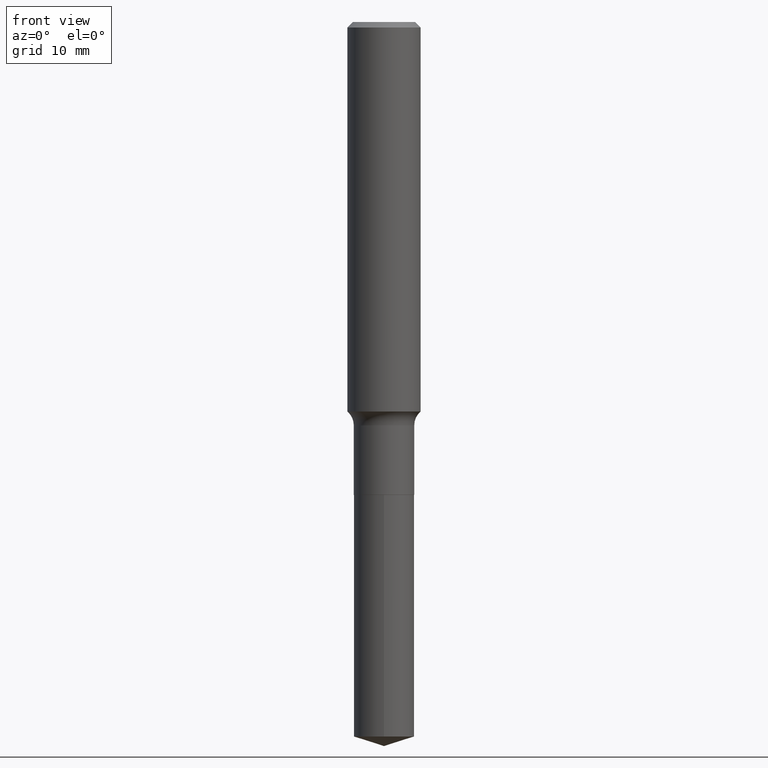
[diagram: clean part render]
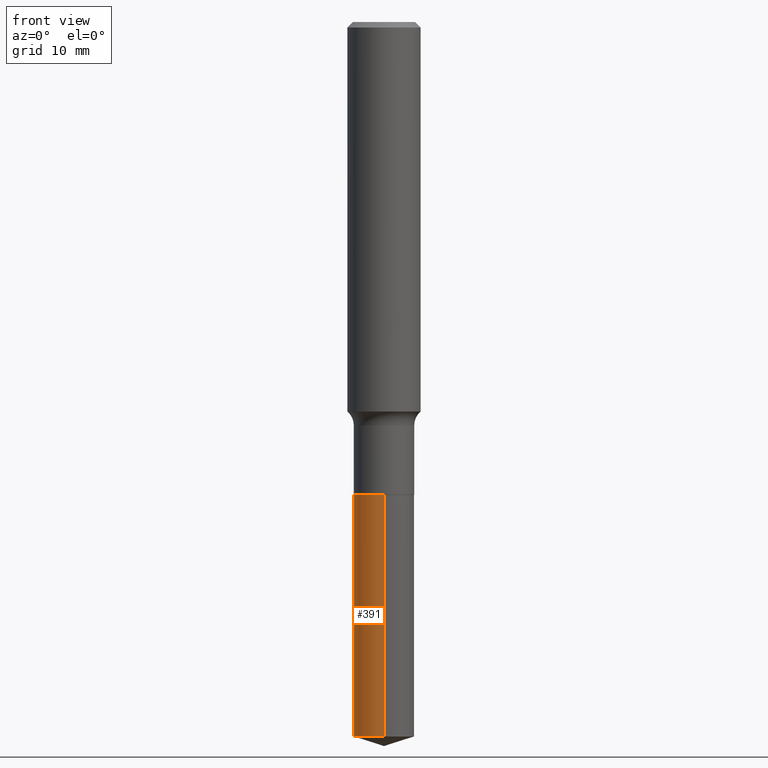
[diagram: same view with one face highlighted and labeled with its STEP entity id]
A machine part, front view. The second image highlights one B-rep face of the part: STEP entity #391.
In plain terms, the highlighted cylindrical surface (edge-blend (fillet) strip) has radius 3.2995 mm, axis along (-0, 0, 1).
Its self-contained STEP definition (entity closure, byte-faithful):
#6 = CARTESIAN_POINT ( 'NONE',  ( 4.967725332884486328E-29, -7.092595191725966323E-15, -2.031400000000000095 ) ) ;
#11 = CARTESIAN_POINT ( 'NONE',  ( 9.229950137524451930E-16, 0.1298999999999928823, -2.031400000000000539 ) ) ;
#36 = CYLINDRICAL_SURFACE ( 'NONE', #296, 0.1298999999999999877 ) ;
#62 = CARTESIAN_POINT ( 'NONE',  ( -9.070868518313962938E-16, -0.1299000000000070654, -2.031399999999999650 ) ) ;
#68 = ORIENTED_EDGE ( 'NONE', *, *, #73, .T. ) ;
#73 = EDGE_CURVE ( 'NONE', #161, #108, #230, .T. ) ;
#77 = LINE ( 'NONE', #384, #223 ) ;
#81 = CARTESIAN_POINT ( 'NONE',  ( -9.070868518313706558E-16, -0.1299000000000107014, -3.069242687324619467 ) ) ;
#83 = DIRECTION ( 'NONE',  ( -2.445412223702241221E-29, 3.491562368179126260E-15, 1.000000000000000000 ) ) ;
#91 = DIRECTION ( 'NONE',  ( -2.445412223702241221E-29, 3.491562368179126260E-15, 1.000000000000000000 ) ) ;
#101 = AXIS2_PLACEMENT_3D ( 'NONE', #6, #316, #450 ) ;
#108 = VERTEX_POINT ( 'NONE', #81 ) ;
#111 = DIRECTION ( 'NONE',  ( -2.445412223702241221E-29, 3.491562368179126654E-15, 1.000000000000000000 ) ) ;
#116 = LINE ( 'NONE', #183, #375 ) ;
#148 = ORIENTED_EDGE ( 'NONE', *, *, #445, .F. ) ;
#161 = VERTEX_POINT ( 'NONE', #467 ) ;
#183 = CARTESIAN_POINT ( 'NONE',  ( -9.070868518313962938E-16, -0.1299000000000070654, -2.031399999999999650 ) ) ;
#191 = VERTEX_POINT ( 'NONE', #62 ) ;
#197 = DIRECTION ( 'NONE',  ( -2.445412223702241221E-29, 3.491562368179126654E-15, 1.000000000000000000 ) ) ;
#203 = FACE_OUTER_BOUND ( 'NONE', #376, .T. ) ;
#223 = VECTOR ( 'NONE', #83, 39.37007874015748143 ) ;
#230 = CIRCLE ( 'NONE', #446, 0.1298999999999999877 ) ;
#232 = DIRECTION ( 'NONE',  ( -6.982962677686266711E-15, -1.000000000000000000, 4.206078512185163024E-15 ) ) ;
#265 = VERTEX_POINT ( 'NONE', #11 ) ;
#267 = EDGE_CURVE ( 'NONE', #108, #191, #116, .T. ) ;
#282 = ORIENTED_EDGE ( 'NONE', *, *, #267, .T. ) ;
#296 = AXIS2_PLACEMENT_3D ( 'NONE', #454, #197, #346 ) ;
#316 = DIRECTION ( 'NONE',  ( -2.445412223702241221E-29, 3.491562368179126654E-15, 1.000000000000000000 ) ) ;
#346 = DIRECTION ( 'NONE',  ( -6.982962677686266711E-15, -1.000000000000000000, 4.206078512185163024E-15 ) ) ;
#375 = VECTOR ( 'NONE', #91, 39.37007874015748143 ) ;
#376 = EDGE_LOOP ( 'NONE', ( #390, #68, #282, #148 ) ) ;
#384 = CARTESIAN_POINT ( 'NONE',  ( 9.229950137524195551E-16, 0.1298999999999929100, -2.031400000000000539 ) ) ;
#390 = ORIENTED_EDGE ( 'NONE', *, *, #461, .F. ) ;
#391 = ADVANCED_FACE ( 'NONE', ( #203 ), #36, .T. ) ;
#395 = CIRCLE ( 'NONE', #101, 0.1298999999999999877 ) ;
#413 = CARTESIAN_POINT ( 'NONE',  ( 7.505678526748094738E-29, -1.071628766287850460E-14, -3.069242687324619911 ) ) ;
#445 = EDGE_CURVE ( 'NONE', #265, #191, #395, .T. ) ;
#446 = AXIS2_PLACEMENT_3D ( 'NONE', #413, #111, #232 ) ;
#450 = DIRECTION ( 'NONE',  ( -6.982962677686266711E-15, -1.000000000000000000, 4.206078512185163024E-15 ) ) ;
#454 = CARTESIAN_POINT ( 'NONE',  ( 4.967725332884486328E-29, -7.092595191725966323E-15, -2.031400000000000095 ) ) ;
#461 = EDGE_CURVE ( 'NONE', #161, #265, #77, .T. ) ;
#467 = CARTESIAN_POINT ( 'NONE',  ( 9.229950137524449958E-16, 0.1298999999999892463, -3.069242687324620800 ) ) ;